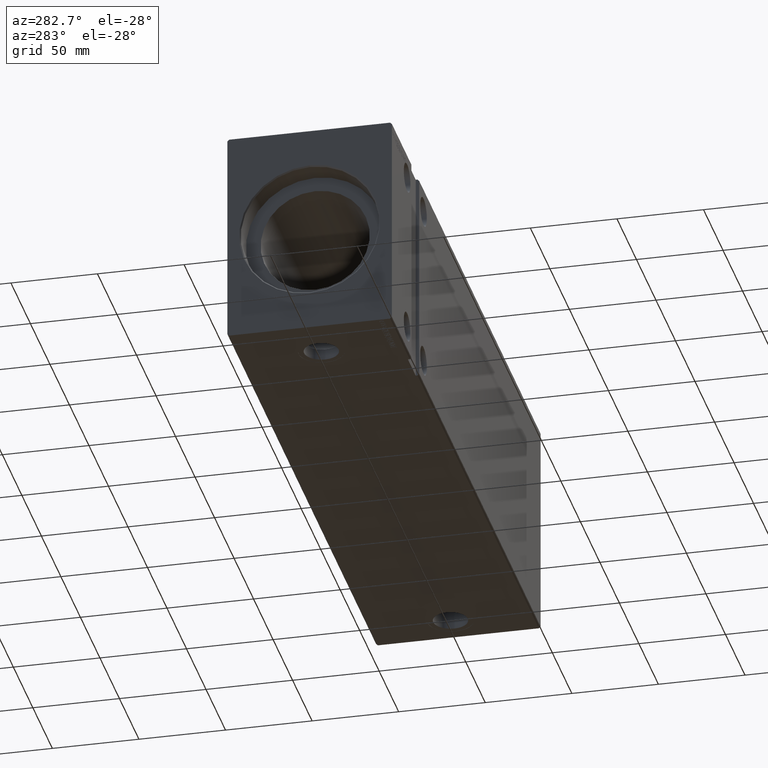
[diagram: clean part render]
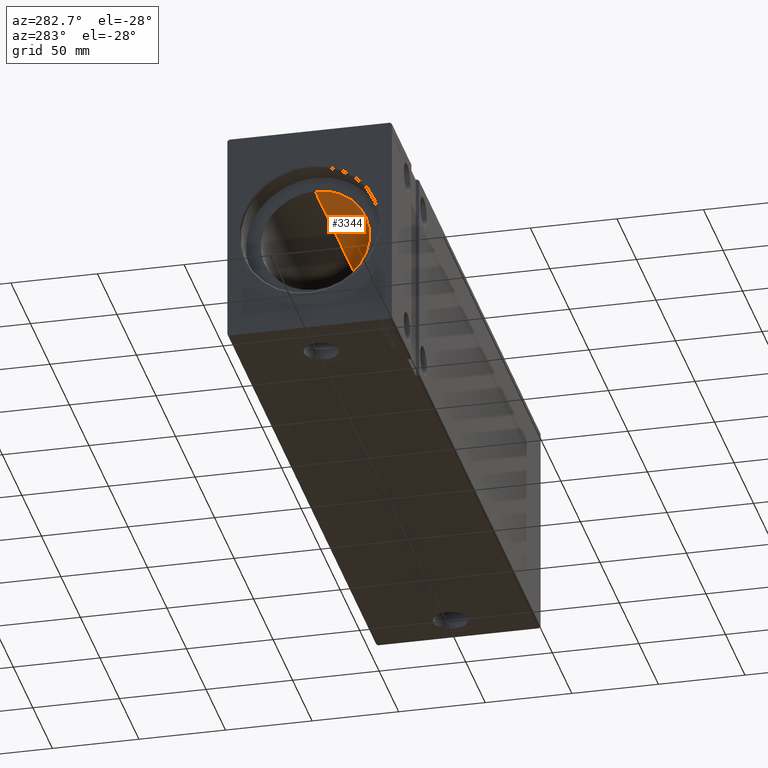
[diagram: same view with one face highlighted and labeled with its STEP entity id]
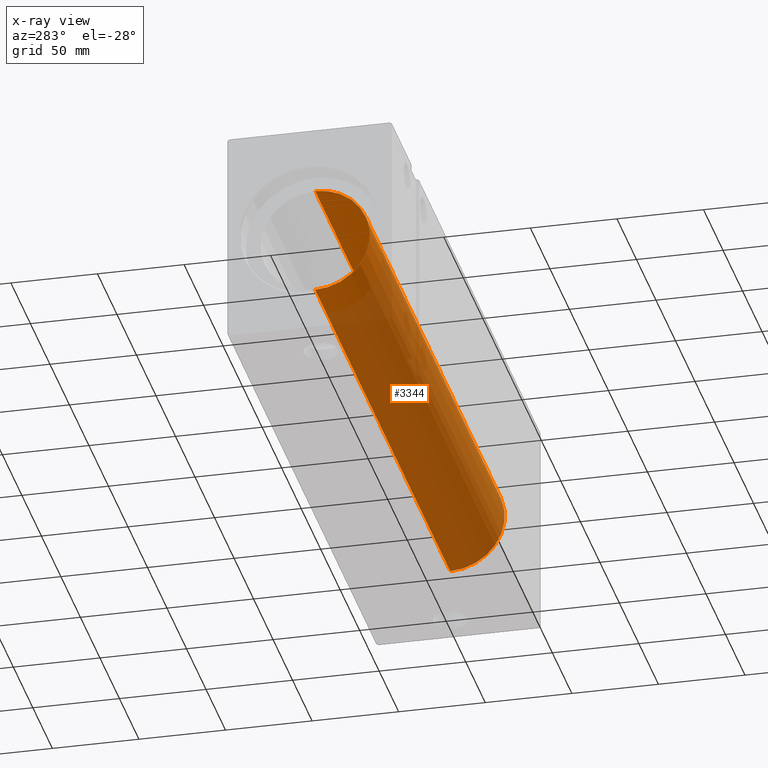
[diagram: x-ray of the same camera — body ghosted, the highlighted face saturated]
A machine part, auxiliary view. The second image highlights one B-rep face of the part: STEP entity #3344.
The next image is the same camera in x-ray: the body ghosted, the highlighted face saturated — about 84% of this face is hidden behind the body in this view.
In plain terms, the highlighted cylindrical surface (partial cylindrical patch) has radius 31.5 mm, axis along (-1, -0, -0).
Its self-contained STEP definition (entity closure, byte-faithful):
#2565 = DIRECTION ( 'NONE',  ( -1.000000000000000000, -0.000000000000000000, -0.000000000000000000 ) ) ;
#2613 = FACE_OUTER_BOUND ( 'NONE', #21319, .T. ) ;
#3240 = CARTESIAN_POINT ( 'NONE',  ( 360.1999999999999886, 0.000000000000000000, 0.000000000000000000 ) ) ;
#3344 = ADVANCED_FACE ( 'NONE', ( #2613 ), #9632, .F. ) ;
#4718 = VECTOR ( 'NONE', #12422, 1000.000000000000000 ) ;
#5256 = CARTESIAN_POINT ( 'NONE',  ( 360.1999999999999886, 3.857637417314162689E-15, -31.50000000000000000 ) ) ;
#5271 = DIRECTION ( 'NONE',  ( 0.000000000000000000, 0.000000000000000000, 1.000000000000000000 ) ) ;
#5972 = CARTESIAN_POINT ( 'NONE',  ( 360.1999999999999886, 3.857637417314162689E-15, -31.50000000000000000 ) ) ;
#7663 = AXIS2_PLACEMENT_3D ( 'NONE', #3240, #16250, #13265 ) ;
#8720 = VERTEX_POINT ( 'NONE', #5256 ) ;
#9632 = CYLINDRICAL_SURFACE ( 'NONE', #7663, 31.50000000000000000 ) ;
#9683 = CIRCLE ( 'NONE', #15151, 31.50000000000000000 ) ;
#10724 = CARTESIAN_POINT ( 'NONE',  ( 360.1999999999999886, 0.000000000000000000, 31.50000000000000000 ) ) ;
#11073 = VERTEX_POINT ( 'NONE', #23281 ) ;
#12083 = DIRECTION ( 'NONE',  ( -1.000000000000000000, 0.000000000000000000, 0.000000000000000000 ) ) ;
#12422 = DIRECTION ( 'NONE',  ( -1.000000000000000000, -0.000000000000000000, -0.000000000000000000 ) ) ;
#12928 = ORIENTED_EDGE ( 'NONE', *, *, #15903, .T. ) ;
#13265 = DIRECTION ( 'NONE',  ( 0.000000000000000000, 0.000000000000000000, 1.000000000000000000 ) ) ;
#13709 = ORIENTED_EDGE ( 'NONE', *, *, #15058, .F. ) ;
#15058 = EDGE_CURVE ( 'NONE', #36069, #11073, #28646, .T. ) ;
#15151 = AXIS2_PLACEMENT_3D ( 'NONE', #17650, #12083, #5271 ) ;
#15903 = EDGE_CURVE ( 'NONE', #8720, #21194, #35631, .T. ) ;
#16250 = DIRECTION ( 'NONE',  ( -1.000000000000000000, -0.000000000000000000, -0.000000000000000000 ) ) ;
#17650 = CARTESIAN_POINT ( 'NONE',  ( 14.00000000000001243, 0.000000000000000000, 0.000000000000000000 ) ) ;
#19137 = ORIENTED_EDGE ( 'NONE', *, *, #40993, .F. ) ;
#21194 = VERTEX_POINT ( 'NONE', #29788 ) ;
#21319 = EDGE_LOOP ( 'NONE', ( #19137, #12928, #29551, #13709 ) ) ;
#23281 = CARTESIAN_POINT ( 'NONE',  ( 14.00000000000001243, 0.000000000000000000, 31.50000000000000000 ) ) ;
#28646 = LINE ( 'NONE', #41640, #4718 ) ;
#29033 = DIRECTION ( 'NONE',  ( -1.000000000000000000, 0.000000000000000000, 0.000000000000000000 ) ) ;
#29551 = ORIENTED_EDGE ( 'NONE', *, *, #33932, .T. ) ;
#29788 = CARTESIAN_POINT ( 'NONE',  ( 14.00000000000001243, 3.857637417314162689E-15, -31.50000000000000000 ) ) ;
#33932 = EDGE_CURVE ( 'NONE', #21194, #11073, #9683, .T. ) ;
#35453 = VECTOR ( 'NONE', #2565, 1000.000000000000000 ) ;
#35631 = LINE ( 'NONE', #5972, #35453 ) ;
#35772 = CIRCLE ( 'NONE', #39163, 31.50000000000000000 ) ;
#36069 = VERTEX_POINT ( 'NONE', #10724 ) ;
#38202 = CARTESIAN_POINT ( 'NONE',  ( 360.1999999999999886, 0.000000000000000000, 0.000000000000000000 ) ) ;
#39163 = AXIS2_PLACEMENT_3D ( 'NONE', #38202, #29033, #42210 ) ;
#40993 = EDGE_CURVE ( 'NONE', #8720, #36069, #35772, .T. ) ;
#41640 = CARTESIAN_POINT ( 'NONE',  ( 360.1999999999999886, 0.000000000000000000, 31.50000000000000000 ) ) ;
#42210 = DIRECTION ( 'NONE',  ( 0.000000000000000000, 0.000000000000000000, 1.000000000000000000 ) ) ;